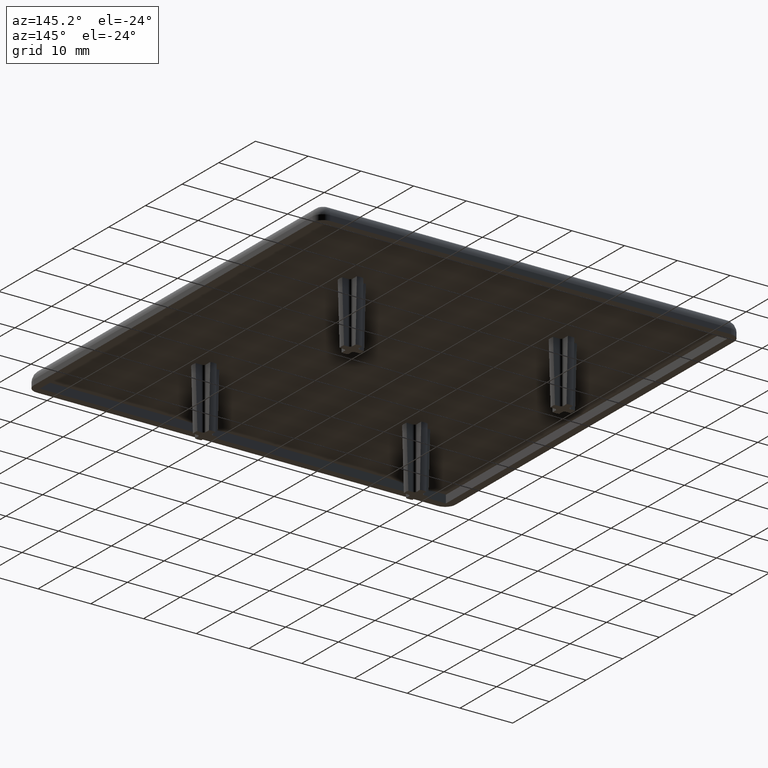
[diagram: clean part render]
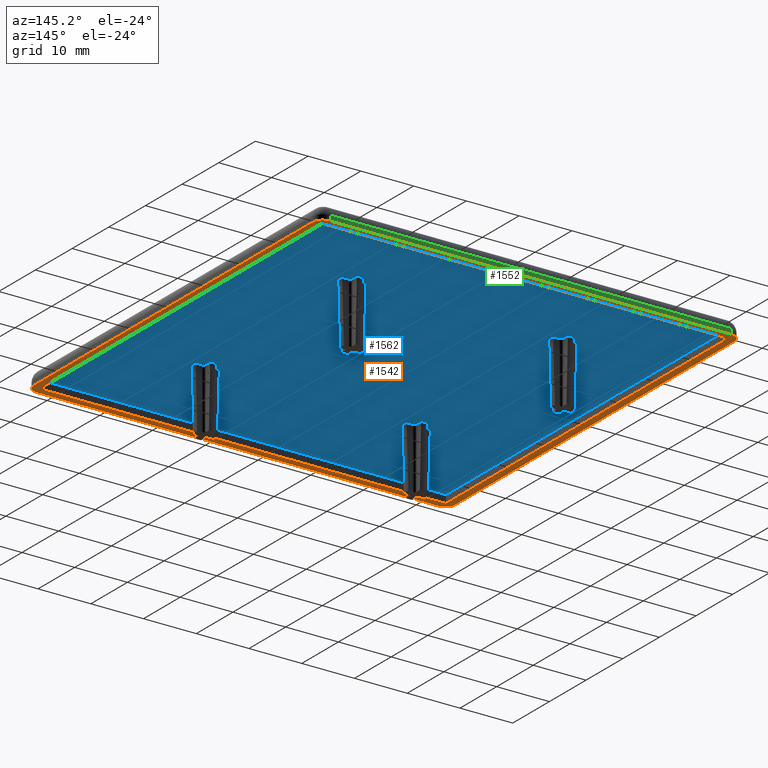
[diagram: same view with three faces highlighted in distinct colors, each labeled with its STEP entity id]
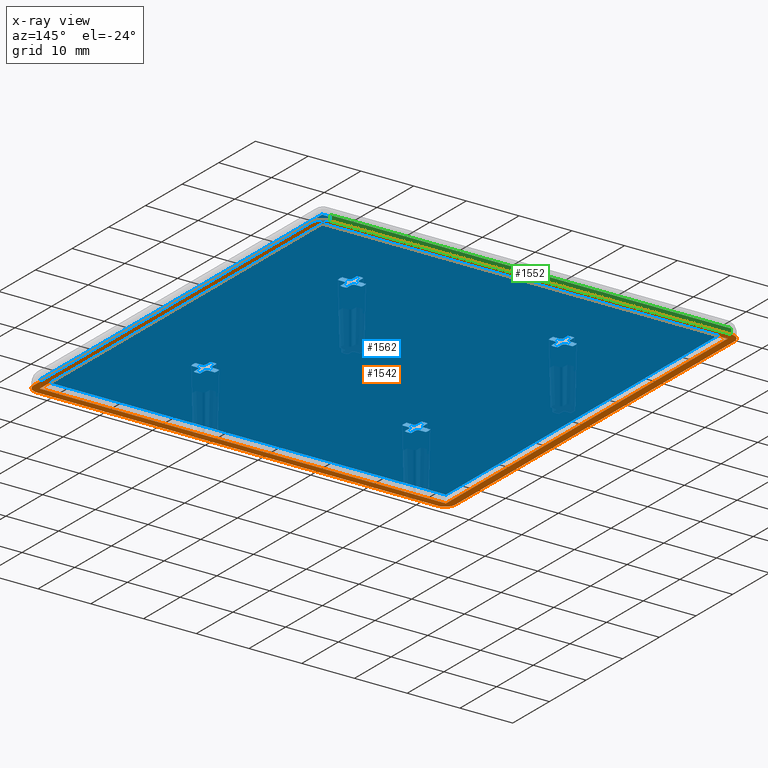
[diagram: x-ray of the same camera — body ghosted, the three highlighted faces saturated]
A machine part, auxiliary view with three faces highlighted in distinct colors.
The next image is the same camera in x-ray (body ghosted, the three faces saturated) — at least one of them is partly hidden behind the body in this view.
Their STEP definitions:

[orange] entity #1542 — the highlighted planar face has unit normal (0, 0, 1).
#91=FACE_BOUND('',#188,.T.);
#96=FACE_OUTER_BOUND('',#187,.T.);
#187=EDGE_LOOP('',(#1015,#1016,#1017,#1018,#1019,#1020,#1021,#1022));
#188=EDGE_LOOP('',(#1023,#1024,#1025,#1026));
#283=LINE('',#2272,#411);
#284=LINE('',#2276,#412);
#285=LINE('',#2280,#413);
#286=LINE('',#2283,#414);
#287=LINE('',#2286,#415);
#288=LINE('',#2288,#416);
#289=LINE('',#2290,#417);
#290=LINE('',#2291,#418);
#411=VECTOR('',#1808,75.99999999968);
#412=VECTOR('',#1811,75.99999999968);
#413=VECTOR('',#1814,75.99999999968);
#414=VECTOR('',#1817,75.99999999968);
#415=VECTOR('',#1818,77.0000006657);
#416=VECTOR('',#1819,77.000000665696);
#417=VECTOR('',#1820,77.0000006657);
#418=VECTOR('',#1821,77.000000665696);
#539=CIRCLE('',#1636,2.);
#540=CIRCLE('',#1637,2.);
#541=CIRCLE('',#1638,2.);
#542=CIRCLE('',#1639,2.);
#619=VERTEX_POINT('',#2268);
#620=VERTEX_POINT('',#2269);
#621=VERTEX_POINT('',#2271);
#622=VERTEX_POINT('',#2273);
#623=VERTEX_POINT('',#2275);
#624=VERTEX_POINT('',#2277);
#625=VERTEX_POINT('',#2279);
#626=VERTEX_POINT('',#2281);
#627=VERTEX_POINT('',#2284);
#628=VERTEX_POINT('',#2285);
#629=VERTEX_POINT('',#2287);
#630=VERTEX_POINT('',#2289);
#775=EDGE_CURVE('',#619,#620,#539,.T.);
#776=EDGE_CURVE('',#620,#621,#283,.T.);
#777=EDGE_CURVE('',#621,#622,#540,.T.);
#778=EDGE_CURVE('',#622,#623,#284,.T.);
#779=EDGE_CURVE('',#623,#624,#541,.T.);
#780=EDGE_CURVE('',#624,#625,#285,.T.);
#781=EDGE_CURVE('',#625,#626,#542,.T.);
#782=EDGE_CURVE('',#626,#619,#286,.T.);
#783=EDGE_CURVE('',#627,#628,#287,.T.);
#784=EDGE_CURVE('',#628,#629,#288,.T.);
#785=EDGE_CURVE('',#629,#630,#289,.T.);
#786=EDGE_CURVE('',#630,#627,#290,.T.);
#1015=ORIENTED_EDGE('',*,*,#775,.T.);
#1016=ORIENTED_EDGE('',*,*,#776,.T.);
#1017=ORIENTED_EDGE('',*,*,#777,.T.);
#1018=ORIENTED_EDGE('',*,*,#778,.T.);
#1019=ORIENTED_EDGE('',*,*,#779,.T.);
#1020=ORIENTED_EDGE('',*,*,#780,.T.);
#1021=ORIENTED_EDGE('',*,*,#781,.T.);
#1022=ORIENTED_EDGE('',*,*,#782,.T.);
#1023=ORIENTED_EDGE('',*,*,#783,.T.);
#1024=ORIENTED_EDGE('',*,*,#784,.T.);
#1025=ORIENTED_EDGE('',*,*,#785,.T.);
#1026=ORIENTED_EDGE('',*,*,#786,.T.);
#1495=PLANE('',#1635);
#1542=ADVANCED_FACE('',(#96,#91),#1495,.F.);
#1635=AXIS2_PLACEMENT_3D('',#2267,#1804,#1805);
#1636=AXIS2_PLACEMENT_3D('',#2270,#1806,#1807);
#1637=AXIS2_PLACEMENT_3D('',#2274,#1809,#1810);
#1638=AXIS2_PLACEMENT_3D('',#2278,#1812,#1813);
#1639=AXIS2_PLACEMENT_3D('',#2282,#1815,#1816);
#1804=DIRECTION('center_axis',(0.,0.,1.));
#1805=DIRECTION('ref_axis',(1.,0.,0.));
#1806=DIRECTION('center_axis',(0.,0.,-1.));
#1807=DIRECTION('ref_axis',(1.,0.,0.));
#1808=DIRECTION('',(-1.,0.,0.));
#1809=DIRECTION('center_axis',(0.,0.,-1.));
#1810=DIRECTION('ref_axis',(0.,-1.,0.));
#1811=DIRECTION('',(0.,1.,0.));
#1812=DIRECTION('center_axis',(0.,0.,-1.));
#1813=DIRECTION('ref_axis',(-1.,0.,0.));
#1814=DIRECTION('',(1.,0.,0.));
#1815=DIRECTION('center_axis',(0.,0.,-1.));
#1816=DIRECTION('ref_axis',(0.,1.,0.));
#1817=DIRECTION('',(0.,-1.,0.));
#1818=DIRECTION('',(1.,0.,0.));
#1819=DIRECTION('',(0.,1.,0.));
#1820=DIRECTION('',(-1.,0.,0.));
#1821=DIRECTION('',(0.,-1.,0.));
#2267=CARTESIAN_POINT('Origin',(-48.00000472443,-8.000004724581,0.));
#2268=CARTESIAN_POINT('',(39.99999999984,2.,0.));
#2269=CARTESIAN_POINT('',(37.99999999984,0.,0.));
#2270=CARTESIAN_POINT('Origin',(37.99999999984,2.,0.));
#2271=CARTESIAN_POINT('',(-37.99999999984,0.,0.));
#2272=CARTESIAN_POINT('',(37.99999999984,0.,0.));
#2273=CARTESIAN_POINT('',(-39.99999999984,2.,0.));
#2274=CARTESIAN_POINT('Origin',(-37.99999999984,2.,0.));
#2275=CARTESIAN_POINT('',(-39.99999999984,77.99999999968,0.));
#2276=CARTESIAN_POINT('',(-39.99999999984,2.,0.));
#2277=CARTESIAN_POINT('',(-37.99999999984,79.99999999968,0.));
#2278=CARTESIAN_POINT('Origin',(-37.99999999984,77.99999999968,0.));
#2279=CARTESIAN_POINT('',(37.99999999984,79.99999999968,0.));
#2280=CARTESIAN_POINT('',(-37.99999999984,79.99999999968,0.));
#2281=CARTESIAN_POINT('',(39.99999999984,77.99999999968,0.));
#2282=CARTESIAN_POINT('Origin',(37.99999999984,77.99999999968,0.));
#2283=CARTESIAN_POINT('',(39.99999999984,77.99999999968,0.));
#2284=CARTESIAN_POINT('',(-38.50000033285,1.499999666994,0.));
#2285=CARTESIAN_POINT('',(38.50000033285,1.499999666994,0.));
#2286=CARTESIAN_POINT('',(-38.50000033285,1.499999666994,0.));
#2287=CARTESIAN_POINT('',(38.50000033285,78.50000033269,0.));
#2288=CARTESIAN_POINT('',(38.50000033285,1.499999666994,0.));
#2289=CARTESIAN_POINT('',(-38.50000033285,78.50000033269,0.));
#2290=CARTESIAN_POINT('',(38.50000033285,78.50000033269,0.));
#2291=CARTESIAN_POINT('',(-38.50000033285,78.50000033269,0.));

[blue] entity #1562 — the highlighted planar face has unit normal (0, 0, -1).
#92=FACE_BOUND('',#209,.T.);
#93=FACE_BOUND('',#210,.T.);
#94=FACE_BOUND('',#211,.T.);
#95=FACE_BOUND('',#212,.T.);
#116=FACE_OUTER_BOUND('',#208,.T.);
#208=EDGE_LOOP('',(#1099,#1100,#1101,#1102));
#209=EDGE_LOOP('',(#1103,#1104,#1105,#1106,#1107,#1108,#1109,#1110,#1111,
#1112,#1113,#1114,#1115,#1116,#1117,#1118));
#210=EDGE_LOOP('',(#1119,#1120,#1121,#1122,#1123,#1124,#1125,#1126,#1127,
#1128,#1129,#1130,#1131,#1132,#1133,#1134));
#211=EDGE_LOOP('',(#1135,#1136,#1137,#1138,#1139,#1140,#1141,#1142,#1143,
#1144,#1145,#1146,#1147,#1148,#1149,#1150));
#212=EDGE_LOOP('',(#1151,#1152,#1153,#1154,#1155,#1156,#1157,#1158,#1159,
#1160,#1161,#1162,#1163,#1164,#1165,#1166));
#309=LINE('',#2658,#437);
#310=LINE('',#2661,#438);
#312=LINE('',#2665,#440);
#313=LINE('',#2666,#441);
#314=LINE('',#2671,#442);
#315=LINE('',#2675,#443);
#316=LINE('',#2679,#444);
#317=LINE('',#2683,#445);
#318=LINE('',#2687,#446);
#319=LINE('',#2691,#447);
#320=LINE('',#2695,#448);
#321=LINE('',#2698,#449);
#322=LINE('',#2703,#450);
#323=LINE('',#2707,#451);
#324=LINE('',#2711,#452);
#325=LINE('',#2715,#453);
#326=LINE('',#2719,#454);
#327=LINE('',#2723,#455);
#328=LINE('',#2727,#456);
#329=LINE('',#2730,#457);
#330=LINE('',#2735,#458);
#331=LINE('',#2739,#459);
#332=LINE('',#2743,#460);
#333=LINE('',#2747,#461);
#334=LINE('',#2751,#462);
#335=LINE('',#2755,#463);
#336=LINE('',#2759,#464);
#337=LINE('',#2762,#465);
#338=LINE('',#2767,#466);
#339=LINE('',#2771,#467);
#340=LINE('',#2775,#468);
#341=LINE('',#2779,#469);
#342=LINE('',#2783,#470);
#343=LINE('',#2787,#471);
#344=LINE('',#2791,#472);
#345=LINE('',#2794,#473);
#437=VECTOR('',#1892,77.0000006657);
#438=VECTOR('',#1895,77.000000665696);
#440=VECTOR('',#1899,77.000000665696);
#441=VECTOR('',#1900,77.0000006657);
#442=VECTOR('',#1903,1.14176920436);
#443=VECTOR('',#1906,1.14177059451);
#444=VECTOR('',#1909,1.14176920436);
#445=VECTOR('',#1912,1.14177059451);
#446=VECTOR('',#1915,1.14176920436);
#447=VECTOR('',#1918,1.14177059451);
#448=VECTOR('',#1921,1.14176920436);
#449=VECTOR('',#1924,1.14177059451);
#450=VECTOR('',#1927,1.14176920435999);
#451=VECTOR('',#1930,1.14177059451);
#452=VECTOR('',#1933,1.14176920436);
#453=VECTOR('',#1936,1.14177059451);
#454=VECTOR('',#1939,1.14176920435999);
#455=VECTOR('',#1942,1.14177059451);
#456=VECTOR('',#1945,1.14176920436);
#457=VECTOR('',#1948,1.14177059451);
#458=VECTOR('',#1951,1.14176920435999);
#459=VECTOR('',#1954,1.14177059451);
#460=VECTOR('',#1957,1.14176920436);
#461=VECTOR('',#1960,1.14177059451);
#462=VECTOR('',#1963,1.14176920435999);
#463=VECTOR('',#1966,1.14177059451);
#464=VECTOR('',#1969,1.14176920436);
#465=VECTOR('',#1972,1.14177059451);
#466=VECTOR('',#1975,1.14176920436);
#467=VECTOR('',#1978,1.14177059451);
#468=VECTOR('',#1981,1.14176920436);
#469=VECTOR('',#1984,1.14177059451);
#470=VECTOR('',#1987,1.14176920436);
#471=VECTOR('',#1990,1.14177059451);
#472=VECTOR('',#1993,1.14176920436);
#473=VECTOR('',#1996,1.14177059451);
#555=CIRCLE('',#1668,0.4999998910239);
#556=CIRCLE('',#1669,2.33427473581424);
#557=CIRCLE('',#1670,0.4999998910239);
#558=CIRCLE('',#1671,2.33427473576462);
#559=CIRCLE('',#1672,0.4999998910239);
#560=CIRCLE('',#1673,2.33427473574918);
#561=CIRCLE('',#1674,0.4999998910239);
#562=CIRCLE('',#1675,2.33427473577911);
#563=CIRCLE('',#1676,0.4999998910239);
#564=CIRCLE('',#1677,2.33427473581451);
#565=CIRCLE('',#1678,0.4999998910239);
#566=CIRCLE('',#1679,2.33427473576456);
#567=CIRCLE('',#1680,0.4999998910239);
#568=CIRCLE('',#1681,2.3342747357492);
#569=CIRCLE('',#1682,0.4999998910239);
#570=CIRCLE('',#1683,2.33427473577909);
#571=CIRCLE('',#1684,0.4999998910239);
#572=CIRCLE('',#1685,2.3342747358145);
#573=CIRCLE('',#1686,0.4999998910239);
#574=CIRCLE('',#1687,2.33427473576418);
#575=CIRCLE('',#1688,0.4999998910239);
#576=CIRCLE('',#1689,2.33427473574923);
#577=CIRCLE('',#1690,0.4999998910239);
#578=CIRCLE('',#1691,2.33427473577913);
#579=CIRCLE('',#1692,0.4999998910239);
#580=CIRCLE('',#1693,2.33427473581437);
#581=CIRCLE('',#1694,0.4999998910239);
#582=CIRCLE('',#1695,2.33427473576436);
#583=CIRCLE('',#1696,0.4999998910239);
#584=CIRCLE('',#1697,2.33427473574921);
#585=CIRCLE('',#1698,0.4999998910239);
#586=CIRCLE('',#1699,2.33427473577913);
#643=VERTEX_POINT('',#2654);
#644=VERTEX_POINT('',#2656);
#645=VERTEX_POINT('',#2660);
#646=VERTEX_POINT('',#2664);
#647=VERTEX_POINT('',#2667);
#648=VERTEX_POINT('',#2668);
#649=VERTEX_POINT('',#2670);
#650=VERTEX_POINT('',#2672);
#651=VERTEX_POINT('',#2674);
#652=VERTEX_POINT('',#2676);
#653=VERTEX_POINT('',#2678);
#654=VERTEX_POINT('',#2680);
#655=VERTEX_POINT('',#2682);
#656=VERTEX_POINT('',#2684);
#657=VERTEX_POINT('',#2686);
#658=VERTEX_POINT('',#2688);
#659=VERTEX_POINT('',#2690);
#660=VERTEX_POINT('',#2692);
#661=VERTEX_POINT('',#2694);
#662=VERTEX_POINT('',#2696);
#663=VERTEX_POINT('',#2699);
#664=VERTEX_POINT('',#2700);
#665=VERTEX_POINT('',#2702);
#666=VERTEX_POINT('',#2704);
#667=VERTEX_POINT('',#2706);
#668=VERTEX_POINT('',#2708);
#669=VERTEX_POINT('',#2710);
#670=VERTEX_POINT('',#2712);
#671=VERTEX_POINT('',#2714);
#672=VERTEX_POINT('',#2716);
#673=VERTEX_POINT('',#2718);
#674=VERTEX_POINT('',#2720);
#675=VERTEX_POINT('',#2722);
#676=VERTEX_POINT('',#2724);
#677=VERTEX_POINT('',#2726);
#678=VERTEX_POINT('',#2728);
#679=VERTEX_POINT('',#2731);
#680=VERTEX_POINT('',#2732);
#681=VERTEX_POINT('',#2734);
#682=VERTEX_POINT('',#2736);
#683=VERTEX_POINT('',#2738);
#684=VERTEX_POINT('',#2740);
#685=VERTEX_POINT('',#2742);
#686=VERTEX_POINT('',#2744);
#687=VERTEX_POINT('',#2746);
#688=VERTEX_POINT('',#2748);
#689=VERTEX_POINT('',#2750);
#690=VERTEX_POINT('',#2752);
#691=VERTEX_POINT('',#2754);
#692=VERTEX_POINT('',#2756);
#693=VERTEX_POINT('',#2758);
#694=VERTEX_POINT('',#2760);
#695=VERTEX_POINT('',#2763);
#696=VERTEX_POINT('',#2764);
#697=VERTEX_POINT('',#2766);
#698=VERTEX_POINT('',#2768);
#699=VERTEX_POINT('',#2770);
#700=VERTEX_POINT('',#2772);
#701=VERTEX_POINT('',#2774);
#702=VERTEX_POINT('',#2776);
#703=VERTEX_POINT('',#2778);
#704=VERTEX_POINT('',#2780);
#705=VERTEX_POINT('',#2782);
#706=VERTEX_POINT('',#2784);
#707=VERTEX_POINT('',#2786);
#708=VERTEX_POINT('',#2788);
#709=VERTEX_POINT('',#2790);
#710=VERTEX_POINT('',#2792);
#817=EDGE_CURVE('',#644,#643,#309,.T.);
#818=EDGE_CURVE('',#643,#645,#310,.T.);
#820=EDGE_CURVE('',#646,#644,#312,.T.);
#821=EDGE_CURVE('',#645,#646,#313,.T.);
#822=EDGE_CURVE('',#647,#648,#555,.T.);
#823=EDGE_CURVE('',#648,#649,#314,.T.);
#824=EDGE_CURVE('',#649,#650,#556,.T.);
#825=EDGE_CURVE('',#651,#650,#315,.T.);
#826=EDGE_CURVE('',#651,#652,#557,.T.);
#827=EDGE_CURVE('',#652,#653,#316,.T.);
#828=EDGE_CURVE('',#653,#654,#558,.T.);
#829=EDGE_CURVE('',#655,#654,#317,.T.);
#830=EDGE_CURVE('',#655,#656,#559,.T.);
#831=EDGE_CURVE('',#656,#657,#318,.T.);
#832=EDGE_CURVE('',#657,#658,#560,.T.);
#833=EDGE_CURVE('',#659,#658,#319,.T.);
#834=EDGE_CURVE('',#659,#660,#561,.T.);
#835=EDGE_CURVE('',#660,#661,#320,.T.);
#836=EDGE_CURVE('',#661,#662,#562,.T.);
#837=EDGE_CURVE('',#647,#662,#321,.T.);
#838=EDGE_CURVE('',#663,#664,#563,.T.);
#839=EDGE_CURVE('',#664,#665,#322,.T.);
#840=EDGE_CURVE('',#665,#666,#564,.T.);
#841=EDGE_CURVE('',#667,#666,#323,.T.);
#842=EDGE_CURVE('',#667,#668,#565,.T.);
#843=EDGE_CURVE('',#668,#669,#324,.T.);
#844=EDGE_CURVE('',#669,#670,#566,.T.);
#845=EDGE_CURVE('',#671,#670,#325,.T.);
#846=EDGE_CURVE('',#671,#672,#567,.T.);
#847=EDGE_CURVE('',#672,#673,#326,.T.);
#848=EDGE_CURVE('',#673,#674,#568,.T.);
#849=EDGE_CURVE('',#675,#674,#327,.T.);
#850=EDGE_CURVE('',#675,#676,#569,.T.);
#851=EDGE_CURVE('',#676,#677,#328,.T.);
#852=EDGE_CURVE('',#677,#678,#570,.T.);
#853=EDGE_CURVE('',#663,#678,#329,.T.);
#854=EDGE_CURVE('',#679,#680,#571,.T.);
#855=EDGE_CURVE('',#680,#681,#330,.T.);
#856=EDGE_CURVE('',#681,#682,#572,.T.);
#857=EDGE_CURVE('',#683,#682,#331,.T.);
#858=EDGE_CURVE('',#683,#684,#573,.T.);
#859=EDGE_CURVE('',#684,#685,#332,.T.);
#860=EDGE_CURVE('',#685,#686,#574,.T.);
#861=EDGE_CURVE('',#687,#686,#333,.T.);
#862=EDGE_CURVE('',#687,#688,#575,.T.);
#863=EDGE_CURVE('',#688,#689,#334,.T.);
#864=EDGE_CURVE('',#689,#690,#576,.T.);
#865=EDGE_CURVE('',#691,#690,#335,.T.);
#866=EDGE_CURVE('',#691,#692,#577,.T.);
#867=EDGE_CURVE('',#692,#693,#336,.T.);
#868=EDGE_CURVE('',#693,#694,#578,.T.);
#869=EDGE_CURVE('',#679,#694,#337,.T.);
#870=EDGE_CURVE('',#695,#696,#579,.T.);
#871=EDGE_CURVE('',#696,#697,#338,.T.);
#872=EDGE_CURVE('',#697,#698,#580,.T.);
#873=EDGE_CURVE('',#699,#698,#339,.T.);
#874=EDGE_CURVE('',#699,#700,#581,.T.);
#875=EDGE_CURVE('',#700,#701,#340,.T.);
#876=EDGE_CURVE('',#701,#702,#582,.T.);
#877=EDGE_CURVE('',#703,#702,#341,.T.);
#878=EDGE_CURVE('',#703,#704,#583,.T.);
#879=EDGE_CURVE('',#704,#705,#342,.T.);
#880=EDGE_CURVE('',#705,#706,#584,.T.);
#881=EDGE_CURVE('',#707,#706,#343,.T.);
#882=EDGE_CURVE('',#707,#708,#585,.T.);
#883=EDGE_CURVE('',#708,#709,#344,.T.);
#884=EDGE_CURVE('',#709,#710,#586,.T.);
#885=EDGE_CURVE('',#695,#710,#345,.T.);
#1099=ORIENTED_EDGE('',*,*,#817,.F.);
#1100=ORIENTED_EDGE('',*,*,#820,.F.);
#1101=ORIENTED_EDGE('',*,*,#821,.F.);
#1102=ORIENTED_EDGE('',*,*,#818,.F.);
#1103=ORIENTED_EDGE('',*,*,#822,.T.);
#1104=ORIENTED_EDGE('',*,*,#823,.T.);
#1105=ORIENTED_EDGE('',*,*,#824,.T.);
#1106=ORIENTED_EDGE('',*,*,#825,.F.);
#1107=ORIENTED_EDGE('',*,*,#826,.T.);
#1108=ORIENTED_EDGE('',*,*,#827,.T.);
#1109=ORIENTED_EDGE('',*,*,#828,.T.);
#1110=ORIENTED_EDGE('',*,*,#829,.F.);
#1111=ORIENTED_EDGE('',*,*,#830,.T.);
#1112=ORIENTED_EDGE('',*,*,#831,.T.);
#1113=ORIENTED_EDGE('',*,*,#832,.T.);
#1114=ORIENTED_EDGE('',*,*,#833,.F.);
#1115=ORIENTED_EDGE('',*,*,#834,.T.);
#1116=ORIENTED_EDGE('',*,*,#835,.T.);
#1117=ORIENTED_EDGE('',*,*,#836,.T.);
#1118=ORIENTED_EDGE('',*,*,#837,.F.);
#1119=ORIENTED_EDGE('',*,*,#838,.T.);
#1120=ORIENTED_EDGE('',*,*,#839,.T.);
#1121=ORIENTED_EDGE('',*,*,#840,.T.);
#1122=ORIENTED_EDGE('',*,*,#841,.F.);
#1123=ORIENTED_EDGE('',*,*,#842,.T.);
#1124=ORIENTED_EDGE('',*,*,#843,.T.);
#1125=ORIENTED_EDGE('',*,*,#844,.T.);
#1126=ORIENTED_EDGE('',*,*,#845,.F.);
#1127=ORIENTED_EDGE('',*,*,#846,.T.);
#1128=ORIENTED_EDGE('',*,*,#847,.T.);
#1129=ORIENTED_EDGE('',*,*,#848,.T.);
#1130=ORIENTED_EDGE('',*,*,#849,.F.);
#1131=ORIENTED_EDGE('',*,*,#850,.T.);
#1132=ORIENTED_EDGE('',*,*,#851,.T.);
#1133=ORIENTED_EDGE('',*,*,#852,.T.);
#1134=ORIENTED_EDGE('',*,*,#853,.F.);
#1135=ORIENTED_EDGE('',*,*,#854,.T.);
#1136=ORIENTED_EDGE('',*,*,#855,.T.);
#1137=ORIENTED_EDGE('',*,*,#856,.T.);
#1138=ORIENTED_EDGE('',*,*,#857,.F.);
#1139=ORIENTED_EDGE('',*,*,#858,.T.);
#1140=ORIENTED_EDGE('',*,*,#859,.T.);
#1141=ORIENTED_EDGE('',*,*,#860,.T.);
#1142=ORIENTED_EDGE('',*,*,#861,.F.);
#1143=ORIENTED_EDGE('',*,*,#862,.T.);
#1144=ORIENTED_EDGE('',*,*,#863,.T.);
#1145=ORIENTED_EDGE('',*,*,#864,.T.);
#1146=ORIENTED_EDGE('',*,*,#865,.F.);
#1147=ORIENTED_EDGE('',*,*,#866,.T.);
#1148=ORIENTED_EDGE('',*,*,#867,.T.);
#1149=ORIENTED_EDGE('',*,*,#868,.T.);
#1150=ORIENTED_EDGE('',*,*,#869,.F.);
#1151=ORIENTED_EDGE('',*,*,#870,.T.);
#1152=ORIENTED_EDGE('',*,*,#871,.T.);
#1153=ORIENTED_EDGE('',*,*,#872,.T.);
#1154=ORIENTED_EDGE('',*,*,#873,.F.);
#1155=ORIENTED_EDGE('',*,*,#874,.T.);
#1156=ORIENTED_EDGE('',*,*,#875,.T.);
#1157=ORIENTED_EDGE('',*,*,#876,.T.);
#1158=ORIENTED_EDGE('',*,*,#877,.F.);
#1159=ORIENTED_EDGE('',*,*,#878,.T.);
#1160=ORIENTED_EDGE('',*,*,#879,.T.);
#1161=ORIENTED_EDGE('',*,*,#880,.T.);
#1162=ORIENTED_EDGE('',*,*,#881,.F.);
#1163=ORIENTED_EDGE('',*,*,#882,.T.);
#1164=ORIENTED_EDGE('',*,*,#883,.T.);
#1165=ORIENTED_EDGE('',*,*,#884,.T.);
#1166=ORIENTED_EDGE('',*,*,#885,.F.);
#1503=PLANE('',#1667);
#1562=ADVANCED_FACE('',(#116,#92,#93,#94,#95),#1503,.T.);
#1667=AXIS2_PLACEMENT_3D('',#2663,#1897,#1898);
#1668=AXIS2_PLACEMENT_3D('',#2669,#1901,#1902);
#1669=AXIS2_PLACEMENT_3D('',#2673,#1904,#1905);
#1670=AXIS2_PLACEMENT_3D('',#2677,#1907,#1908);
#1671=AXIS2_PLACEMENT_3D('',#2681,#1910,#1911);
#1672=AXIS2_PLACEMENT_3D('',#2685,#1913,#1914);
#1673=AXIS2_PLACEMENT_3D('',#2689,#1916,#1917);
#1674=AXIS2_PLACEMENT_3D('',#2693,#1919,#1920);
#1675=AXIS2_PLACEMENT_3D('',#2697,#1922,#1923);
#1676=AXIS2_PLACEMENT_3D('',#2701,#1925,#1926);
#1677=AXIS2_PLACEMENT_3D('',#2705,#1928,#1929);
#1678=AXIS2_PLACEMENT_3D('',#2709,#1931,#1932);
#1679=AXIS2_PLACEMENT_3D('',#2713,#1934,#1935);
#1680=AXIS2_PLACEMENT_3D('',#2717,#1937,#1938);
#1681=AXIS2_PLACEMENT_3D('',#2721,#1940,#1941);
#1682=AXIS2_PLACEMENT_3D('',#2725,#1943,#1944);
#1683=AXIS2_PLACEMENT_3D('',#2729,#1946,#1947);
#1684=AXIS2_PLACEMENT_3D('',#2733,#1949,#1950);
#1685=AXIS2_PLACEMENT_3D('',#2737,#1952,#1953);
#1686=AXIS2_PLACEMENT_3D('',#2741,#1955,#1956);
#1687=AXIS2_PLACEMENT_3D('',#2745,#1958,#1959);
#1688=AXIS2_PLACEMENT_3D('',#2749,#1961,#1962);
#1689=AXIS2_PLACEMENT_3D('',#2753,#1964,#1965);
#1690=AXIS2_PLACEMENT_3D('',#2757,#1967,#1968);
#1691=AXIS2_PLACEMENT_3D('',#2761,#1970,#1971);
#1692=AXIS2_PLACEMENT_3D('',#2765,#1973,#1974);
#1693=AXIS2_PLACEMENT_3D('',#2769,#1976,#1977);
#1694=AXIS2_PLACEMENT_3D('',#2773,#1979,#1980);
#1695=AXIS2_PLACEMENT_3D('',#2777,#1982,#1983);
#1696=AXIS2_PLACEMENT_3D('',#2781,#1985,#1986);
#1697=AXIS2_PLACEMENT_3D('',#2785,#1988,#1989);
#1698=AXIS2_PLACEMENT_3D('',#2789,#1991,#1992);
#1699=AXIS2_PLACEMENT_3D('',#2793,#1994,#1995);
#1892=DIRECTION('',(1.,0.,0.));
#1895=DIRECTION('',(0.,1.,0.));
#1897=DIRECTION('center_axis',(0.,0.,-1.));
#1898=DIRECTION('ref_axis',(1.,0.,0.));
#1899=DIRECTION('',(0.,-1.,0.));
#1900=DIRECTION('',(-1.,0.,0.));
#1901=DIRECTION('center_axis',(0.,0.,-1.));
#1902=DIRECTION('ref_axis',(2.145839529686E-12,-1.,0.));
#1903=DIRECTION('',(0.,1.,0.));
#1904=DIRECTION('center_axis',(2.07112652061381E-13,-5.48908747476895E-13,
1.));
#1905=DIRECTION('ref_axis',(-0.261792769094338,0.96512410914344,5.83939969691728E-13));
#1906=DIRECTION('',(2.489266194721E-14,1.,0.));
#1907=DIRECTION('center_axis',(0.,0.,-1.));
#1908=DIRECTION('ref_axis',(1.,2.245315534374E-12,0.));
#1909=DIRECTION('',(-1.,0.,0.));
#1910=DIRECTION('center_axis',(-3.36552429465142E-14,3.81465046429286E-13,
1.));
#1911=DIRECTION('ref_axis',(-1.,3.11624897699168E-12,-3.36499717829916E-14));
#1912=DIRECTION('',(-1.,2.489266194721E-14,0.));
#1913=DIRECTION('center_axis',(0.,0.,-1.));
#1914=DIRECTION('ref_axis',(-2.614797837498E-12,1.,0.));
#1915=DIRECTION('',(0.,-1.,0.));
#1916=DIRECTION('center_axis',(-6.69934916834995E-14,-2.57407581505336E-13,
1.));
#1917=DIRECTION('ref_axis',(0.261792769096946,-0.965124109142732,-2.30912527219088E-13));
#1918=DIRECTION('',(-2.489266194721E-14,-1.,0.));
#1919=DIRECTION('center_axis',(0.,0.,-1.));
#1920=DIRECTION('ref_axis',(-1.,-2.245315534374E-12,0.));
#1921=DIRECTION('',(1.,0.,0.));
#1922=DIRECTION('center_axis',(-1.22737264897251E-13,-2.95680282676925E-13,
1.));
#1923=DIRECTION('ref_axis',(0.965124109141643,0.261792769100964,1.9583570150616E-13));
#1924=DIRECTION('',(1.,-2.489266194721E-14,0.));
#1925=DIRECTION('center_axis',(0.,0.,-1.));
#1926=DIRECTION('ref_axis',(2.380318683592E-12,-1.,0.));
#1927=DIRECTION('',(0.,1.,0.));
#1928=DIRECTION('center_axis',(2.06658458158599E-13,-5.4890874765264E-13,
1.));
#1929=DIRECTION('ref_axis',(-0.26179276909432,0.965124109143445,5.83821065197731E-13));
#1930=DIRECTION('',(2.489266194721E-14,1.,0.));
#1931=DIRECTION('center_axis',(0.,0.,-1.));
#1932=DIRECTION('ref_axis',(1.,2.245315534374E-12,0.));
#1933=DIRECTION('',(-1.,0.,0.));
#1934=DIRECTION('center_axis',(-3.36552429465952E-14,3.81465046429308E-13,
1.));
#1935=DIRECTION('ref_axis',(-1.,3.12005392079762E-12,-3.36499717829926E-14));
#1936=DIRECTION('',(-1.,1.866949646041E-14,0.));
#1937=DIRECTION('center_axis',(0.,0.,-1.));
#1938=DIRECTION('ref_axis',(-2.380318683592E-12,1.,0.));
#1939=DIRECTION('',(0.,-1.,0.));
#1940=DIRECTION('center_axis',(-6.90373692979647E-14,-2.45474781690587E-13,
1.));
#1941=DIRECTION('ref_axis',(0.261792769096948,-0.965124109142732,-2.18784268837858E-13));
#1942=DIRECTION('',(-2.489266194721E-14,-1.,0.));
#1943=DIRECTION('center_axis',(0.,0.,-1.));
#1944=DIRECTION('ref_axis',(-1.,-2.245315534374E-12,0.));
#1945=DIRECTION('',(1.,1.866951919117E-14,0.));
#1946=DIRECTION('center_axis',(-1.21032579183851E-13,-2.95453185003815E-13,
1.));
#1947=DIRECTION('ref_axis',(0.965124109141643,0.261792769100964,1.94171038591112E-13));
#1948=DIRECTION('',(1.,-2.489266194721E-14,0.));
#1949=DIRECTION('center_axis',(0.,0.,-1.));
#1950=DIRECTION('ref_axis',(2.373213254686E-12,-1.,0.));
#1951=DIRECTION('',(0.,1.,0.));
#1952=DIRECTION('center_axis',(2.07112650617952E-13,-5.4549937587707E-13,
1.));
#1953=DIRECTION('ref_axis',(-0.261792769094302,0.96512410914345,5.80729548355547E-13));
#1954=DIRECTION('',(2.489266194721E-14,1.,0.));
#1955=DIRECTION('center_axis',(0.,0.,-1.));
#1956=DIRECTION('ref_axis',(1.,2.131628671874E-12,0.));
#1957=DIRECTION('',(-1.,0.,0.));
#1958=DIRECTION('center_axis',(-2.68364779631552E-14,3.81010851802414E-13,
1.));
#1959=DIRECTION('ref_axis',(-1.,3.08200448273961E-12,-2.68724156288253E-14));
#1960=DIRECTION('',(-1.,1.866949646041E-14,0.));
#1961=DIRECTION('center_axis',(0.,0.,-1.));
#1962=DIRECTION('ref_axis',(-2.359002396873E-12,1.,0.));
#1963=DIRECTION('',(0.,-1.,0.));
#1964=DIRECTION('center_axis',(-6.69934801362306E-14,-2.84682554303924E-13,
1.));
#1965=DIRECTION('ref_axis',(0.26179276909693,-0.965124109142737,-2.57190420378414E-13));
#1966=DIRECTION('',(-2.489266194721E-14,-1.,0.));
#1967=DIRECTION('center_axis',(0.,0.,-1.));
#1968=DIRECTION('ref_axis',(-1.,-2.131628671874E-12,0.));
#1969=DIRECTION('',(1.,1.866951919117E-14,0.));
#1970=DIRECTION('center_axis',(-1.22737265070376E-13,-2.95226088774141E-13,
1.));
#1971=DIRECTION('ref_axis',(0.965124109141642,0.261792769100967,1.95716797012226E-13));
#1972=DIRECTION('',(1.,-1.24463309736E-14,0.));
#1973=DIRECTION('center_axis',(0.,0.,-1.));
#1974=DIRECTION('ref_axis',(2.145839529686E-12,-1.,0.));
#1975=DIRECTION('',(0.,1.,0.));
#1976=DIRECTION('center_axis',(2.06658456715171E-13,-5.45499376052719E-13,
1.));
#1977=DIRECTION('ref_axis',(-0.261792769094324,0.965124109143444,5.80610643861647E-13));
#1978=DIRECTION('',(2.800424469061E-14,1.,0.));
#1979=DIRECTION('center_axis',(0.,0.,-1.));
#1980=DIRECTION('ref_axis',(1.,2.131628671874E-12,0.));
#1981=DIRECTION('',(-1.,0.,0.));
#1982=DIRECTION('center_axis',(-1.33773049630289E-14,3.79217833866909E-13,
1.));
#1983=DIRECTION('ref_axis',(-1.,3.09056560630253E-12,-1.34362078144116E-14));
#1984=DIRECTION('',(-1.,2.489266194721E-14,0.));
#1985=DIRECTION('center_axis',(0.,0.,-1.));
#1986=DIRECTION('ref_axis',(-2.614797837498E-12,1.,0.));
#1987=DIRECTION('',(0.,-1.,0.));
#1988=DIRECTION('center_axis',(-6.69934916835001E-14,-2.57407581505333E-13,
1.));
#1989=DIRECTION('ref_axis',(0.261792769096939,-0.965124109142734,-2.30912527219086E-13));
#1990=DIRECTION('',(-2.489266194721E-14,-1.,0.));
#1991=DIRECTION('center_axis',(0.,0.,-1.));
#1992=DIRECTION('ref_axis',(-1.,-2.131628671874E-12,0.));
#1993=DIRECTION('',(1.,0.,0.));
#1994=DIRECTION('center_axis',(-1.21032579183886E-13,-2.95453185003816E-13,
1.));
#1995=DIRECTION('ref_axis',(0.965124109141642,0.261792769100967,1.94171038591109E-13));
#1996=DIRECTION('',(1.,-2.489266194721E-14,0.));
#2654=CARTESIAN_POINT('',(38.50000033285,1.499999666994,1.5));
#2656=CARTESIAN_POINT('',(-38.50000033285,1.499999666994,1.5));
#2658=CARTESIAN_POINT('',(-38.50000033285,1.499999666994,1.5));
#2660=CARTESIAN_POINT('',(38.50000033285,78.50000033269,1.5));
#2661=CARTESIAN_POINT('',(38.50000033285,1.499999666994,1.5));
#2663=CARTESIAN_POINT('Origin',(-46.20000512393,86.20000512377,1.5));
#2664=CARTESIAN_POINT('',(-38.50000033285,78.50000033269,1.5));
#2665=CARTESIAN_POINT('',(-38.50000033285,78.50000033269,1.5));
#2666=CARTESIAN_POINT('',(38.50000033285,78.50000033269,1.5));
#2667=CARTESIAN_POINT('',(-18.88890529456,20.61109624675,1.5));
#2668=CARTESIAN_POINT('',(-19.38890518559,21.11109613778,1.5));
#2669=CARTESIAN_POINT('Origin',(-18.88890529456,21.11109613778,1.5));
#2670=CARTESIAN_POINT('',(-19.38890518559,22.25286534214,1.5));
#2671=CARTESIAN_POINT('',(-19.38890518559,21.11109613778,1.5));
#2672=CARTESIAN_POINT('',(-20.61109577183,22.25286482471,1.5));
#2673=CARTESIAN_POINT('Origin',(-19.9999995249141,19.9999999998106,1.49999999999866));
#2674=CARTESIAN_POINT('',(-20.61109577183,21.1110942302,1.5));
#2675=CARTESIAN_POINT('',(-20.61109577183,21.1110942302,1.5));
#2676=CARTESIAN_POINT('',(-21.11109566286,20.61109433917,1.5));
#2677=CARTESIAN_POINT('Origin',(-21.11109566286,21.1110942302,1.5));
#2678=CARTESIAN_POINT('',(-22.25286486722,20.61109433917,1.5));
#2679=CARTESIAN_POINT('',(-21.11109566286,20.61109433917,1.5));
#2680=CARTESIAN_POINT('',(-22.25286434979,19.38890375293,1.5));
#2681=CARTESIAN_POINT('Origin',(-19.9999995249403,19.9999999998327,1.50000000000023));
#2682=CARTESIAN_POINT('',(-21.11109375528,19.38890375293,1.5));
#2683=CARTESIAN_POINT('',(-21.11109375528,19.38890375293,1.5));
#2684=CARTESIAN_POINT('',(-20.61109386425,18.8889038619,1.5));
#2685=CARTESIAN_POINT('Origin',(-21.11109375528,18.8889038619,1.5));
#2686=CARTESIAN_POINT('',(-20.61109386425,17.74713465754,1.5));
#2687=CARTESIAN_POINT('',(-20.61109386425,18.8889038619,1.5));
#2688=CARTESIAN_POINT('',(-19.38890327801,17.74713517497,1.5));
#2689=CARTESIAN_POINT('Origin',(-19.9999995249148,19.9999999998043,1.50000000000054));
#2690=CARTESIAN_POINT('',(-19.38890327801,18.88890576948,1.5));
#2691=CARTESIAN_POINT('',(-19.38890327801,18.88890576948,1.5));
#2692=CARTESIAN_POINT('',(-18.88890338698,19.38890566051,1.5));
#2693=CARTESIAN_POINT('Origin',(-18.88890338698,18.88890576948,1.5));
#2694=CARTESIAN_POINT('',(-17.74713418262,19.38890566051,1.5));
#2695=CARTESIAN_POINT('',(-18.88890338698,19.38890566051,1.5));
#2696=CARTESIAN_POINT('',(-17.74713470005,20.61109624675,1.5));
#2697=CARTESIAN_POINT('Origin',(-19.9999995249143,19.999999999827,1.49999999999965));
#2698=CARTESIAN_POINT('',(-18.88890529456,20.61109624675,1.5));
#2699=CARTESIAN_POINT('',(-18.88890529456,60.61109624675,1.5));
#2700=CARTESIAN_POINT('',(-19.38890518559,61.11109613778,1.5));
#2701=CARTESIAN_POINT('Origin',(-18.88890529456,61.11109613778,1.5));
#2702=CARTESIAN_POINT('',(-19.38890518559,62.25286534214,1.5));
#2703=CARTESIAN_POINT('',(-19.38890518559,61.11109613778,1.5));
#2704=CARTESIAN_POINT('',(-20.61109577183,62.25286482471,1.5));
#2705=CARTESIAN_POINT('Origin',(-19.999999524914,59.9999999998104,1.49999999999866));
#2706=CARTESIAN_POINT('',(-20.61109577183,61.1110942302,1.5));
#2707=CARTESIAN_POINT('',(-20.61109577183,61.1110942302,1.5));
#2708=CARTESIAN_POINT('',(-21.11109566286,60.61109433917,1.5));
#2709=CARTESIAN_POINT('Origin',(-21.11109566286,61.1110942302,1.5));
#2710=CARTESIAN_POINT('',(-22.25286486722,60.61109433917,1.5));
#2711=CARTESIAN_POINT('',(-21.11109566286,60.61109433917,1.5));
#2712=CARTESIAN_POINT('',(-22.25286434979,59.38890375293,1.5));
#2713=CARTESIAN_POINT('Origin',(-19.9999995249403,59.9999999998327,1.50000000000023));
#2714=CARTESIAN_POINT('',(-21.11109375528,59.38890375293,1.5));
#2715=CARTESIAN_POINT('',(-21.11109375528,59.38890375293,1.5));
#2716=CARTESIAN_POINT('',(-20.61109386425,58.8889038619,1.5));
#2717=CARTESIAN_POINT('Origin',(-21.11109375528,58.8889038619,1.5));
#2718=CARTESIAN_POINT('',(-20.61109386425,57.74713465754,1.5));
#2719=CARTESIAN_POINT('',(-20.61109386425,58.8889038619,1.5));
#2720=CARTESIAN_POINT('',(-19.38890327801,57.74713517497,1.5));
#2721=CARTESIAN_POINT('Origin',(-19.9999995249148,59.9999999998043,1.50000000000051));
#2722=CARTESIAN_POINT('',(-19.38890327801,58.88890576948,1.5));
#2723=CARTESIAN_POINT('',(-19.38890327801,58.88890576948,1.5));
#2724=CARTESIAN_POINT('',(-18.88890338698,59.38890566051,1.5));
#2725=CARTESIAN_POINT('Origin',(-18.88890338698,58.88890576948,1.5));
#2726=CARTESIAN_POINT('',(-17.74713418262,59.38890566051,1.5));
#2727=CARTESIAN_POINT('',(-18.88890338698,59.38890566051,1.5));
#2728=CARTESIAN_POINT('',(-17.74713470005,60.61109624675,1.5));
#2729=CARTESIAN_POINT('Origin',(-19.9999995249142,59.999999999827,1.49999999999965));
#2730=CARTESIAN_POINT('',(-18.88890529456,60.61109624675,1.5));
#2731=CARTESIAN_POINT('',(21.11109470544,60.61109624675,1.5));
#2732=CARTESIAN_POINT('',(20.61109481441,61.11109613778,1.5));
#2733=CARTESIAN_POINT('Origin',(21.11109470544,61.11109613778,1.5));
#2734=CARTESIAN_POINT('',(20.61109481441,62.25286534214,1.5));
#2735=CARTESIAN_POINT('',(20.61109481441,61.11109613778,1.5));
#2736=CARTESIAN_POINT('',(19.38890422817,62.25286482471,1.5));
#2737=CARTESIAN_POINT('Origin',(20.0000004750859,59.9999999998104,1.49999999999866));
#2738=CARTESIAN_POINT('',(19.38890422817,61.1110942302,1.5));
#2739=CARTESIAN_POINT('',(19.38890422817,61.1110942302,1.5));
#2740=CARTESIAN_POINT('',(18.88890433714,60.61109433917,1.5));
#2741=CARTESIAN_POINT('Origin',(18.88890433714,61.1110942302,1.5));
#2742=CARTESIAN_POINT('',(17.74713513278,60.61109433917,1.5));
#2743=CARTESIAN_POINT('',(18.88890433714,60.61109433917,1.5));
#2744=CARTESIAN_POINT('',(17.74713565021,59.38890375293,1.5));
#2745=CARTESIAN_POINT('Origin',(20.0000004750593,59.9999999998328,1.50000000000021));
#2746=CARTESIAN_POINT('',(18.88890624472,59.38890375293,1.5));
#2747=CARTESIAN_POINT('',(18.88890624472,59.38890375293,1.5));
#2748=CARTESIAN_POINT('',(19.38890613575,58.8889038619,1.5));
#2749=CARTESIAN_POINT('Origin',(18.88890624472,58.8889038619,1.5));
#2750=CARTESIAN_POINT('',(19.38890613575,57.74713465754,1.5));
#2751=CARTESIAN_POINT('',(19.38890613575,58.8889038619,1.5));
#2752=CARTESIAN_POINT('',(20.61109672199,57.74713517497,1.5));
#2753=CARTESIAN_POINT('Origin',(20.0000004750852,59.9999999998044,1.5000000000006));
#2754=CARTESIAN_POINT('',(20.61109672199,58.88890576948,1.5));
#2755=CARTESIAN_POINT('',(20.61109672199,58.88890576948,1.5));
#2756=CARTESIAN_POINT('',(21.11109661302,59.38890566051,1.5));
#2757=CARTESIAN_POINT('Origin',(21.11109661302,58.88890576948,1.5));
#2758=CARTESIAN_POINT('',(22.25286581738,59.38890566051,1.5));
#2759=CARTESIAN_POINT('',(21.11109661302,59.38890566051,1.5));
#2760=CARTESIAN_POINT('',(22.25286529995,60.61109624675,1.5));
#2761=CARTESIAN_POINT('Origin',(20.0000004750857,59.999999999827,1.49999999999965));
#2762=CARTESIAN_POINT('',(21.11109470544,60.61109624675,1.5));
#2763=CARTESIAN_POINT('',(21.11109470544,20.61109624675,1.5));
#2764=CARTESIAN_POINT('',(20.61109481441,21.11109613778,1.5));
#2765=CARTESIAN_POINT('Origin',(21.11109470544,21.11109613778,1.5));
#2766=CARTESIAN_POINT('',(20.61109481441,22.25286534214,1.5));
#2767=CARTESIAN_POINT('',(20.61109481441,21.11109613778,1.5));
#2768=CARTESIAN_POINT('',(19.38890422817,22.25286482471,1.5));
#2769=CARTESIAN_POINT('Origin',(20.0000004750859,19.9999999998105,1.49999999999866));
#2770=CARTESIAN_POINT('',(19.38890422817,21.1110942302,1.5));
#2771=CARTESIAN_POINT('',(19.38890422817,21.1110942302,1.5));
#2772=CARTESIAN_POINT('',(18.88890433714,20.61109433917,1.5));
#2773=CARTESIAN_POINT('Origin',(18.88890433714,21.1110942302,1.5));
#2774=CARTESIAN_POINT('',(17.74713513278,20.61109433917,1.5));
#2775=CARTESIAN_POINT('',(18.88890433714,20.61109433917,1.5));
#2776=CARTESIAN_POINT('',(17.74713565021,19.38890375293,1.5));
#2777=CARTESIAN_POINT('Origin',(20.0000004750595,19.9999999998328,1.50000000000018));
#2778=CARTESIAN_POINT('',(18.88890624472,19.38890375293,1.5));
#2779=CARTESIAN_POINT('',(18.88890624472,19.38890375293,1.5));
#2780=CARTESIAN_POINT('',(19.38890613575,18.8889038619,1.5));
#2781=CARTESIAN_POINT('Origin',(18.88890624472,18.8889038619,1.5));
#2782=CARTESIAN_POINT('',(19.38890613575,17.74713465754,1.5));
#2783=CARTESIAN_POINT('',(19.38890613575,18.8889038619,1.5));
#2784=CARTESIAN_POINT('',(20.61109672199,17.74713517497,1.5));
#2785=CARTESIAN_POINT('Origin',(20.0000004750852,19.9999999998043,1.50000000000054));
#2786=CARTESIAN_POINT('',(20.61109672199,18.88890576948,1.5));
#2787=CARTESIAN_POINT('',(20.61109672199,18.88890576948,1.5));
#2788=CARTESIAN_POINT('',(21.11109661302,19.38890566051,1.5));
#2789=CARTESIAN_POINT('Origin',(21.11109661302,18.88890576948,1.5));
#2790=CARTESIAN_POINT('',(22.25286581738,19.38890566051,1.5));
#2791=CARTESIAN_POINT('',(21.11109661302,19.38890566051,1.5));
#2792=CARTESIAN_POINT('',(22.25286529995,20.61109624675,1.5));
#2793=CARTESIAN_POINT('Origin',(20.0000004750857,19.999999999827,1.49999999999965));
#2794=CARTESIAN_POINT('',(21.11109470544,20.61109624675,1.5));

[green] entity #1552 — the highlighted planar face has unit normal (0, 1, 0).
#106=FACE_OUTER_BOUND('',#198,.T.);
#198=EDGE_LOOP('',(#1062,#1063,#1064,#1065));
#285=LINE('',#2280,#413);
#302=LINE('',#2405,#430);
#303=LINE('',#2408,#431);
#304=LINE('',#2409,#432);
#413=VECTOR('',#1814,75.99999999968);
#430=VECTOR('',#1863,0.999999333988);
#431=VECTOR('',#1866,75.99999999968);
#432=VECTOR('',#1867,0.999999333988);
#624=VERTEX_POINT('',#2277);
#625=VERTEX_POINT('',#2279);
#640=VERTEX_POINT('',#2403);
#641=VERTEX_POINT('',#2407);
#780=EDGE_CURVE('',#624,#625,#285,.T.);
#805=EDGE_CURVE('',#640,#624,#302,.T.);
#806=EDGE_CURVE('',#641,#640,#303,.T.);
#807=EDGE_CURVE('',#625,#641,#304,.T.);
#1062=ORIENTED_EDGE('',*,*,#780,.F.);
#1063=ORIENTED_EDGE('',*,*,#805,.F.);
#1064=ORIENTED_EDGE('',*,*,#806,.F.);
#1065=ORIENTED_EDGE('',*,*,#807,.F.);
#1499=PLANE('',#1655);
#1552=ADVANCED_FACE('',(#106),#1499,.T.);
#1655=AXIS2_PLACEMENT_3D('',#2406,#1864,#1865);
#1814=DIRECTION('',(1.,0.,0.));
#1863=DIRECTION('',(-1.065814813486E-13,1.421086417981E-14,-1.));
#1864=DIRECTION('center_axis',(0.,1.,0.));
#1865=DIRECTION('ref_axis',(-1.,0.,0.));
#1866=DIRECTION('',(-1.,0.,0.));
#1867=DIRECTION('',(0.,0.,1.));
#2277=CARTESIAN_POINT('',(-37.99999999984,79.99999999968,0.));
#2279=CARTESIAN_POINT('',(37.99999999984,79.99999999968,0.));
#2280=CARTESIAN_POINT('',(-37.99999999984,79.99999999968,0.));
#2403=CARTESIAN_POINT('',(-37.99999999984,79.99999999968,0.999999333988));
#2405=CARTESIAN_POINT('',(-37.99999999984,79.99999999968,0.999999333988));
#2406=CARTESIAN_POINT('Origin',(39.99999999984,79.99999999968,0.));
#2407=CARTESIAN_POINT('',(37.99999999984,79.99999999968,0.999999333988));
#2408=CARTESIAN_POINT('',(37.99999999984,79.99999999968,0.999999333988));
#2409=CARTESIAN_POINT('',(37.99999999984,79.99999999968,0.));